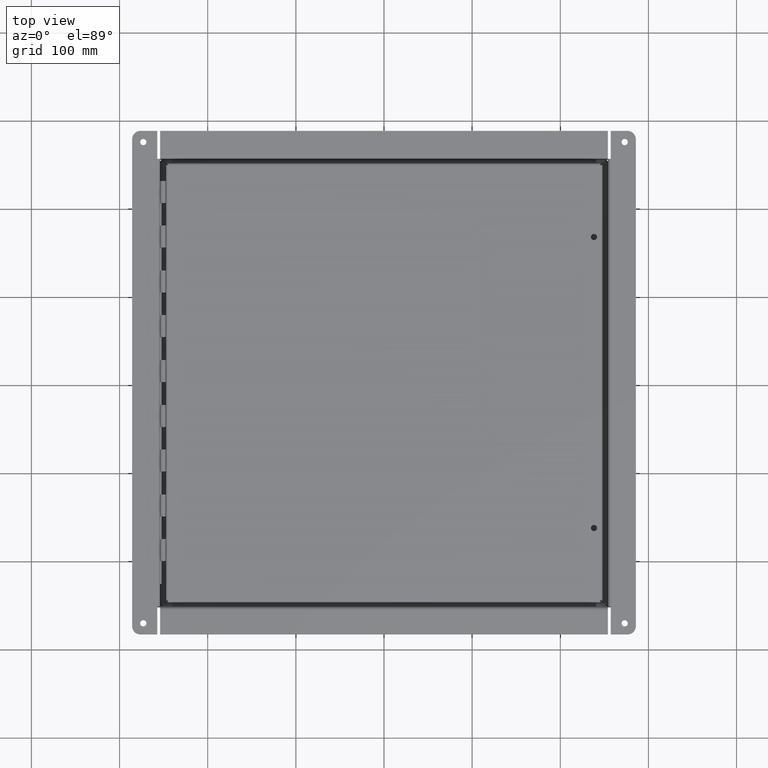
[diagram: clean part render]
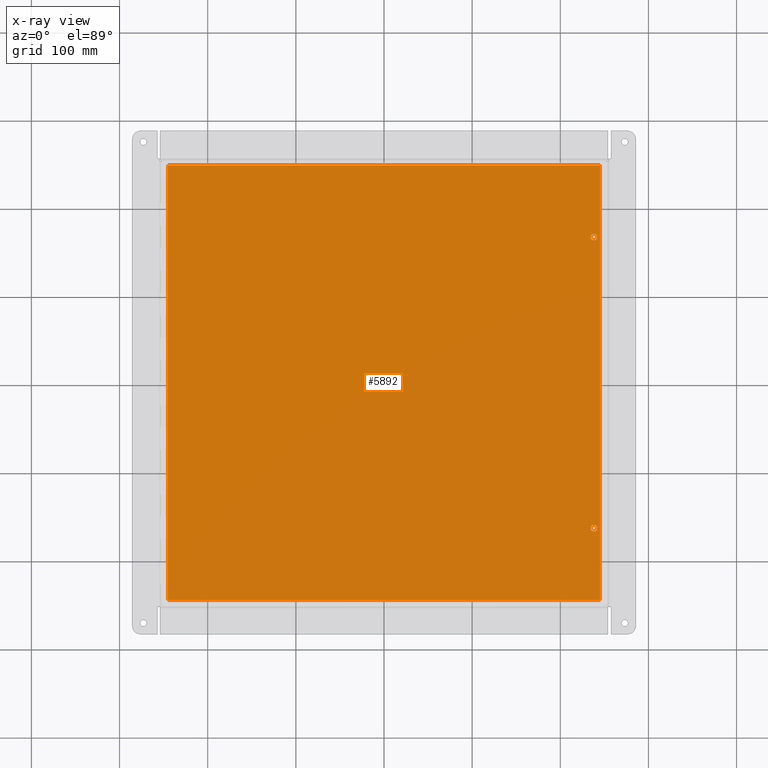
[diagram: x-ray — body ghosted, one internal face saturated and labeled with its STEP entity id]
A machine part, top view, then the same camera in x-ray: the body is ghosted and one INTERNAL B-rep face — a face not visible from any outside direction — is saturated and labeled: STEP entity #5892.
In plain terms, the highlighted planar face has unit normal (0, -0, 1).
Its self-contained STEP definition (entity closure, byte-faithful):
#89=FACE_BOUND($,#1143,.T.);
#90=FACE_BOUND($,#1144,.T.);
#91=FACE_BOUND($,#1145,.T.);
#180=CIRCLE($,#6246,0.1405);
#182=CIRCLE($,#6249,0.1405);
#498=PLANE($,#6279);
#1143=EDGE_LOOP($,(#4543));
#1144=EDGE_LOOP($,(#4544));
#1145=EDGE_LOOP($,(#4545,#4546,#4547,#4548));
#1634=LINE($,#9929,#2182);
#1649=LINE($,#10029,#2197);
#1664=LINE($,#10129,#2212);
#1678=LINE($,#10226,#2226);
#2182=VECTOR($,#7208,19.2895);
#2197=VECTOR($,#7237,19.4145);
#2212=VECTOR($,#7266,19.2895);
#2226=VECTOR($,#7294,19.4145);
#2659=VERTEX_POINT($,#9818);
#2661=VERTEX_POINT($,#9823);
#2672=VERTEX_POINT($,#9882);
#2673=VERTEX_POINT($,#9912);
#2683=VERTEX_POINT($,#9984);
#2693=VERTEX_POINT($,#10084);
#3275=EDGE_CURVE($,#2659,#2659,#180,.T.);
#3277=EDGE_CURVE($,#2661,#2661,#182,.T.);
#3298=EDGE_CURVE($,#2673,#2672,#1634,.T.);
#3317=EDGE_CURVE($,#2672,#2683,#1649,.T.);
#3336=EDGE_CURVE($,#2683,#2693,#1664,.T.);
#3354=EDGE_CURVE($,#2693,#2673,#1678,.T.);
#4543=ORIENTED_EDGE($,*,*,#3275,.T.);
#4544=ORIENTED_EDGE($,*,*,#3277,.T.);
#4545=ORIENTED_EDGE($,*,*,#3298,.T.);
#4546=ORIENTED_EDGE($,*,*,#3317,.T.);
#4547=ORIENTED_EDGE($,*,*,#3336,.T.);
#4548=ORIENTED_EDGE($,*,*,#3354,.T.);
#5892=ADVANCED_FACE($,(#89,#90,#91),#498,.F.);
#6246=AXIS2_PLACEMENT_3D($,#9819,#7169,#7170);
#6249=AXIS2_PLACEMENT_3D($,#9824,#7175,#7176);
#6279=AXIS2_PLACEMENT_3D($,#10227,#7295,#7296);
#7169=DIRECTION('center_axis',(0.,0.,1.));
#7170=DIRECTION('ref_axis',(-1.,0.,0.));
#7175=DIRECTION('center_axis',(0.,0.,1.));
#7176=DIRECTION('ref_axis',(-1.,0.,0.));
#7208=DIRECTION($,(1.,2.90045086239893E-016,0.));
#7237=DIRECTION($,(4.32266452215438E-016,-1.,0.));
#7266=DIRECTION($,(-1.,-1.45022543119946E-016,0.));
#7294=DIRECTION($,(-1.44088817405146E-016,1.,0.));
#7295=DIRECTION('center_axis',(0.,0.,1.));
#7296=DIRECTION('ref_axis',(1.,0.,0.));
#9818=CARTESIAN_POINT('',(9.5155,-6.5,7.0077156688294E-014));
#9819=CARTESIAN_POINT('Origin',(9.375,-6.5,0.));
#9823=CARTESIAN_POINT('',(9.5155,6.5,0.));
#9824=CARTESIAN_POINT('Origin',(9.375,6.5,0.));
#9882=CARTESIAN_POINT('',(9.64475,9.70725,0.));
#9912=CARTESIAN_POINT('',(-9.64475,9.70724999999999,0.));
#9929=CARTESIAN_POINT($,(4.822375,9.70725,0.));
#9984=CARTESIAN_POINT('',(9.64475,-9.70725,0.));
#10029=CARTESIAN_POINT($,(9.64475,-4.853625,0.));
#10084=CARTESIAN_POINT('',(-9.64475,-9.70725,0.));
#10129=CARTESIAN_POINT($,(-4.822375,-9.70725,0.));
#10226=CARTESIAN_POINT($,(-9.64475,4.85362499999999,0.));
#10227=CARTESIAN_POINT('Origin',(2.79741234551221E-015,-5.05604047330214E-015,
0.));